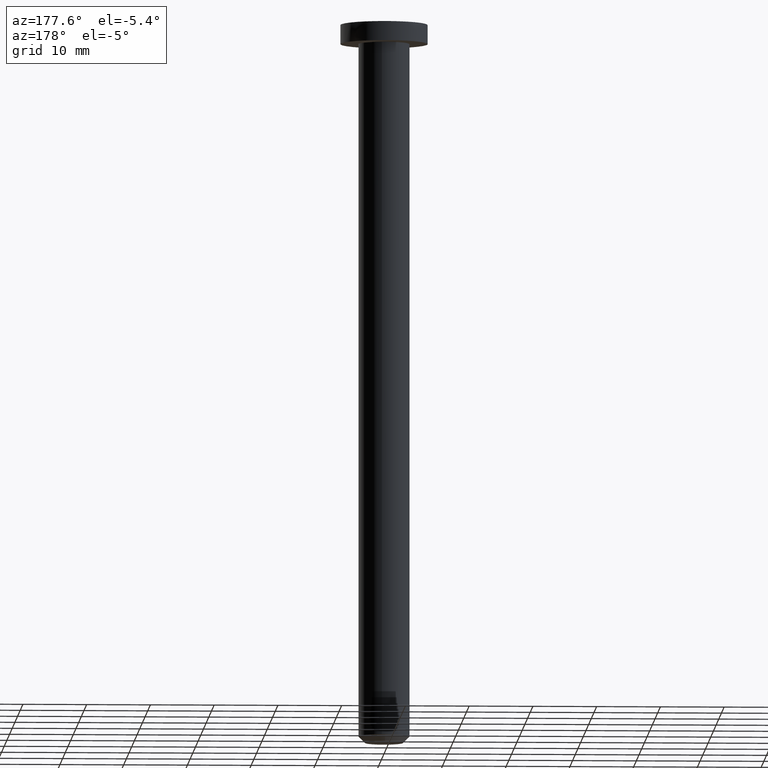
[diagram: clean part render]
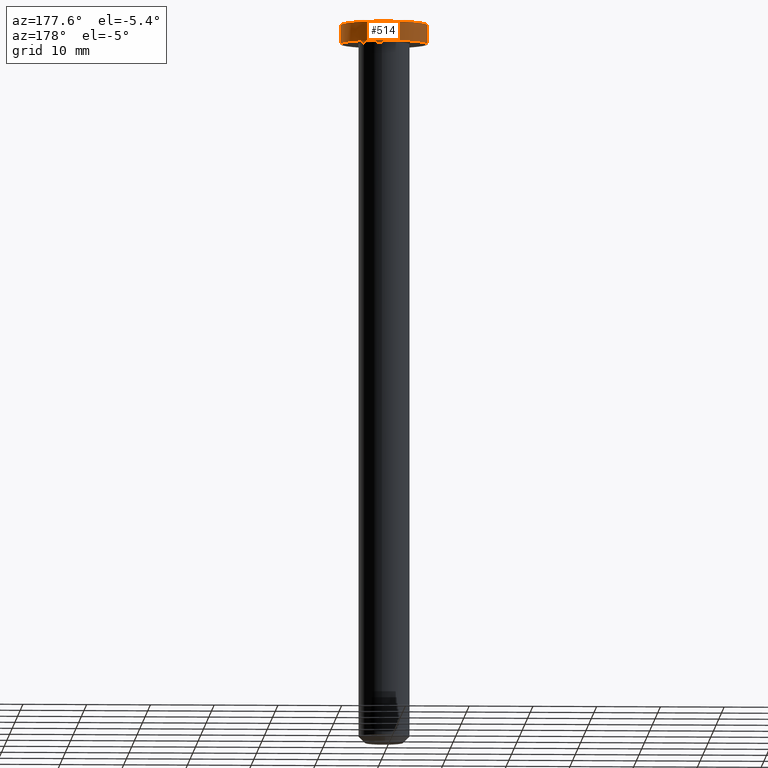
[diagram: same view with one face highlighted and labeled with its STEP entity id]
A machine part, auxiliary view. The second image highlights one B-rep face of the part: STEP entity #514.
In plain terms, the highlighted face is a freeform B-spline surface patch.
Its self-contained STEP definition (entity closure, byte-faithful):
#393=CARTESIAN_POINT('',(6.837397168630480,0.0,112.999999986134600));
#394=VERTEX_POINT('',#393);
#395=CARTESIAN_POINT('',(-6.837397168630480,0.0,112.999999986134600));
#396=VERTEX_POINT('',#395);
#397=CARTESIAN_POINT('',(6.837397168630480,0.0,112.999999986134600));
#398=CARTESIAN_POINT('',(6.837397168630479,-6.837397168630479,112.999999986134600));
#399=CARTESIAN_POINT('',(0.0,-6.837397168630480,112.999999986134600));
#400=CARTESIAN_POINT('',(-6.837397168630479,-6.837397168630479,112.999999986134600));
#401=CARTESIAN_POINT('',(-6.837397168630480,0.0,112.999999986134600));
#409=(BOUNDED_CURVE()B_SPLINE_CURVE(2,(#397,#398,#399,#400,#401),.UNSPECIFIED.,.F.,.U.)B_SPLINE_CURVE_WITH_KNOTS((3,2,3),(0.500000000000000,0.750000000000000,1.0),.UNSPECIFIED.)CURVE()GEOMETRIC_REPRESENTATION_ITEM()RATIONAL_B_SPLINE_CURVE((1.0,0.707106781186548,1.0,0.707106781186548,1.0))REPRESENTATION_ITEM(''));
#410=EDGE_CURVE('',#394,#396,#409,.T.);
#412=CARTESIAN_POINT('',(-6.837397168630480,0.0,112.999999986134600));
#413=CARTESIAN_POINT('',(-6.837397168630479,6.837397168630479,112.999999986134600));
#414=CARTESIAN_POINT('',(0.0,6.837397168630480,112.999999986134600));
#415=CARTESIAN_POINT('',(6.837397168630479,6.837397168630479,112.999999986134600));
#416=CARTESIAN_POINT('',(6.837397168630480,0.0,112.999999986134600));
#424=(BOUNDED_CURVE()B_SPLINE_CURVE(2,(#412,#413,#414,#415,#416),.UNSPECIFIED.,.F.,.U.)B_SPLINE_CURVE_WITH_KNOTS((3,2,3),(0.0,0.250000000000000,0.500000000000000),.UNSPECIFIED.)CURVE()GEOMETRIC_REPRESENTATION_ITEM()RATIONAL_B_SPLINE_CURVE((1.0,0.707106781186548,1.0,0.707106781186548,1.0))REPRESENTATION_ITEM(''));
#425=EDGE_CURVE('',#396,#394,#424,.T.);
#430=CARTESIAN_POINT('',(-4.166826270854390,4.166826270854393,115.278242667833200));
#431=CARTESIAN_POINT('',(-3.869966885417784,5.159955847223715,114.510362682809610));
#432=CARTESIAN_POINT('',(-1.693658976456551,6.774635905826205,113.261904748699620));
#433=CARTESIAN_POINT('',(1.693658976456551,6.774635905826205,113.261904748699620));
#434=CARTESIAN_POINT('',(3.869966885417784,5.159955847223715,114.510362682809610));
#435=CARTESIAN_POINT('',(4.166826270854390,4.166826270854393,115.278242667833200));
#436=CARTESIAN_POINT('',(-5.159955847223713,3.869966885417787,114.510362682809610));
#437=CARTESIAN_POINT('',(-5.080976929369654,5.080976929369654,113.261904748699620));
#438=CARTESIAN_POINT('',(-2.465028409586338,7.395085228759013,110.876237609775980));
#439=CARTESIAN_POINT('',(2.465028409586338,7.395085228759013,110.876237609775980));
#440=CARTESIAN_POINT('',(5.080976929369654,5.080976929369654,113.261904748699620));
#441=CARTESIAN_POINT('',(5.159955847223713,3.869966885417787,114.510362682809610));
#442=CARTESIAN_POINT('',(-6.774635905826205,1.693658976456553,113.261904748699620));
#443=CARTESIAN_POINT('',(-7.395085228759013,2.465028409586338,110.876237609775980));
#444=CARTESIAN_POINT('',(-4.526688525663090,4.526688525663084,104.500000000000000));
#445=CARTESIAN_POINT('',(4.526688525663090,4.526688525663084,104.500000000000000));
#446=CARTESIAN_POINT('',(7.395085228759013,2.465028409586338,110.876237609775980));
#447=CARTESIAN_POINT('',(6.774635905826205,1.693658976456553,113.261904748699620));
#448=CARTESIAN_POINT('',(-6.774635905826205,-1.693658976456550,113.261904748699620));
#449=CARTESIAN_POINT('',(-7.395085228759013,-2.465028409586338,110.876237609775980));
#450=CARTESIAN_POINT('',(-4.526688525663090,-4.526688525663096,104.500000000000000));
#451=CARTESIAN_POINT('',(4.526688525663090,-4.526688525663096,104.500000000000000));
#452=CARTESIAN_POINT('',(7.395085228759013,-2.465028409586338,110.876237609775980));
#453=CARTESIAN_POINT('',(6.774635905826205,-1.693658976456550,113.261904748699620));
#454=CARTESIAN_POINT('',(-5.159955847223713,-3.869966885417781,114.510362682809610));
#455=CARTESIAN_POINT('',(-5.080976929369654,-5.080976929369654,113.261904748699620));
#456=CARTESIAN_POINT('',(-2.465028409586338,-7.395085228759013,110.876237609776040));
#457=CARTESIAN_POINT('',(2.465028409586338,-7.395085228759013,110.876237609776040));
#458=CARTESIAN_POINT('',(5.080976929369654,-5.080976929369654,113.261904748699620));
#459=CARTESIAN_POINT('',(5.159955847223713,-3.869966885417781,114.510362682809610));
#460=CARTESIAN_POINT('',(-4.166826270854390,-4.166826270854387,115.278242667833230));
#461=CARTESIAN_POINT('',(-3.869966885417784,-5.159955847223709,114.510362682809610));
#462=CARTESIAN_POINT('',(-1.693658976456551,-6.774635905826205,113.261904748699620));
#463=CARTESIAN_POINT('',(1.693658976456551,-6.774635905826205,113.261904748699620));
#464=CARTESIAN_POINT('',(3.869966885417784,-5.159955847223709,114.510362682809610));
#465=CARTESIAN_POINT('',(4.166826270854390,-4.166826270854387,115.278242667833230));
#473=(BOUNDED_SURFACE()B_SPLINE_SURFACE(2,2,((#430,#436,#442,#448,#454,#460),(#431,#437,#443,#449,#455,#461),(#432,#438,#444,#450,#456,#462),(#433,#439,#445,#451,#457,#463),(#434,#440,#446,#452,#458,#464),(#435,#441,#447,#453,#459,#465)),.UNSPECIFIED.,.F.,.F.,.U.)B_SPLINE_SURFACE_WITH_KNOTS((3,1,1,1,3),(3,1,1,1,3),(0.0,7.487755461199946,14.975510922399890,22.463266383599841,29.951021844799779),(0.0,7.487755461199944,14.975510922399890,22.463266383599830,29.951021844799779),.UNSPECIFIED.)GEOMETRIC_REPRESENTATION_ITEM()RATIONAL_B_SPLINE_SURFACE(((4.345454531978759,3.509090898984069,2.672727265989380,2.672727265989380,3.509090898984069,4.345454531978759),(3.509090898984069,2.672727265989380,1.836363632994690,1.836363632994690,2.672727265989380,3.509090898984069),(2.672727265989380,1.836363632994690,1.0,1.0,1.836363632994690,2.672727265989380),(2.672727265989380,1.836363632994690,1.0,1.0,1.836363632994690,2.672727265989380),(3.509090898984069,2.672727265989380,1.836363632994690,1.836363632994690,2.672727265989380,3.509090898984069),(4.345454531978759,3.509090898984069,2.672727265989380,2.672727265989380,3.509090898984069,4.345454531978759)))REPRESENTATION_ITEM('')SURFACE());
#474=CARTESIAN_POINT('',(-6.837397165588650,0.0,110.0));
#475=VERTEX_POINT('',#474);
#476=CARTESIAN_POINT('',(6.837397165588650,0.0,110.0));
#477=VERTEX_POINT('',#476);
#478=CARTESIAN_POINT('',(-6.837397165588650,0.0,110.0));
#479=CARTESIAN_POINT('',(-6.837397165588650,6.837397165588650,110.0));
#480=CARTESIAN_POINT('',(0.0,6.837397165588650,110.0));
#481=CARTESIAN_POINT('',(6.837397165588650,6.837397165588650,110.0));
#482=CARTESIAN_POINT('',(6.837397165588650,0.0,110.0));
#490=(BOUNDED_CURVE()B_SPLINE_CURVE(2,(#478,#479,#480,#481,#482),.UNSPECIFIED.,.F.,.U.)B_SPLINE_CURVE_WITH_KNOTS((3,2,3),(0.0,0.250000000000000,0.500000000000000),.UNSPECIFIED.)CURVE()GEOMETRIC_REPRESENTATION_ITEM()RATIONAL_B_SPLINE_CURVE((1.0,0.707106781186548,1.0,0.707106781186548,1.0))REPRESENTATION_ITEM(''));
#491=EDGE_CURVE('',#475,#477,#490,.T.);
#492=ORIENTED_EDGE('',*,*,#491,.F.);
#493=CARTESIAN_POINT('',(6.837397165588650,0.0,110.0));
#494=CARTESIAN_POINT('',(6.837397165588650,-6.837397165588650,110.0));
#495=CARTESIAN_POINT('',(0.0,-6.837397165588650,110.0));
#496=CARTESIAN_POINT('',(-6.837397165588650,-6.837397165588650,110.0));
#497=CARTESIAN_POINT('',(-6.837397165588650,0.0,110.0));
#505=(BOUNDED_CURVE()B_SPLINE_CURVE(2,(#493,#494,#495,#496,#497),.UNSPECIFIED.,.F.,.U.)B_SPLINE_CURVE_WITH_KNOTS((3,2,3),(0.500000000000000,0.750000000000000,1.0),.UNSPECIFIED.)CURVE()GEOMETRIC_REPRESENTATION_ITEM()RATIONAL_B_SPLINE_CURVE((1.0,0.707106781186548,1.0,0.707106781186548,1.0))REPRESENTATION_ITEM(''));
#506=EDGE_CURVE('',#477,#475,#505,.T.);
#507=ORIENTED_EDGE('',*,*,#506,.F.);
#508=EDGE_LOOP('',(#492,#507));
#509=FACE_OUTER_BOUND('',#508,.T.);
#510=ORIENTED_EDGE('',*,*,#425,.T.);
#511=ORIENTED_EDGE('',*,*,#410,.T.);
#512=EDGE_LOOP('',(#510,#511));
#513=FACE_BOUND('',#512,.T.);
#514=ADVANCED_FACE('',(#509,#513),#473,.T.);